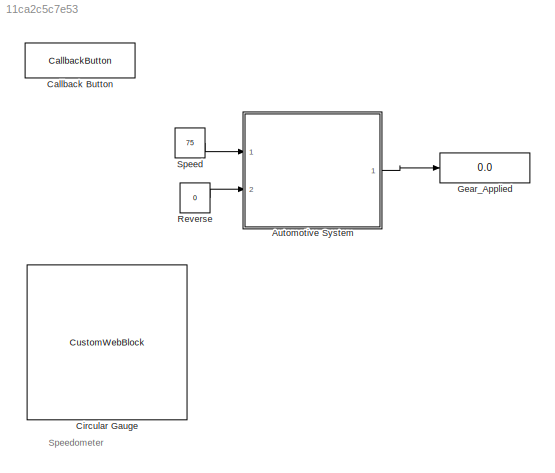
MODEL slx_11ca2c5c7e53
KIND model
CONFIG AbsTol = auto
CONFIG EnableMultiTasking = off
CONFIG FixedStep = auto
CONFIG MaxStep = auto
CONFIG MinStep = auto
CONFIG RelTol = 1e-3
CONFIG SampleTimeConstraint = Unconstrained
CONFIG SolverName = VariableStepAuto
CONFIG StartTime = 0.0
CONFIG StopTime = 10.0
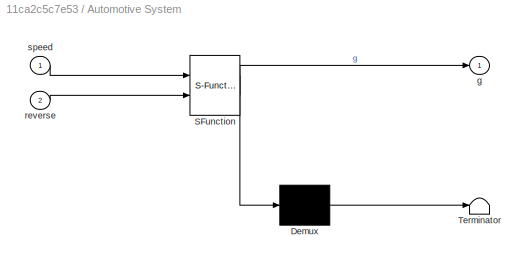
BLOCK [SubSystem] Automotive System
  ErrorFcn = Stateflow.Translate.translate
  PermitHierarchicalResolution = ExplicitOnly
  Ports = [2, 1]
  RequestExecContextInheritance = off
  SFBlockType = Chart
  TreatAsAtomicUnit = on
BLOCK [Demux] Automotive System/ Demux 
  Outputs = 1
  Ports = [1, 1]
BLOCK [S-Function] Automotive System/ SFunction 
  EnableBusSupport = on
  FunctionName = sf_sfun
  PortCounts = [2 2]
  Ports = [2, 2]
  SFcnIsStateOwnerBlock = off
  SFunctionDeploymentMode = off
  Tag = Stateflow S-Function 3
BLOCK [Terminator] Automotive System/ Terminator 
BLOCK [Outport] Automotive System/g
BLOCK [Inport] Automotive System/reverse
  Port = 2
BLOCK [Inport] Automotive System/speed
BLOCK [CallbackButton] Callback Button
  ClickFcn = vdp\nset_param(bdroot,'Solver','ode15s','StopTime','3000')
BLOCK [CustomWebBlock] Circular Gauge
  Configuration = {"components":[{"name":"CircularScaleComponent","settings":{"bounds":{"max":150,"min":0,"tickInterval":"auto"},"direction":"cw","flipLimits":0,"innerRadius":0.75,"internalTickHeightScaleFactor":1,"labelColor":[255,252,199],"labelFont":{"font":"Arial","fontSize":12},"labelTransparency":1,"minorTickHeightScaleFactor":0.2,"needleImage":{"size":[1890,567],"src":"data:image\/svg+xml;base64,PD94bWwgdmVy...<+15935ch>
  LabelPosition = Hide
  ShowInitialText = on
BLOCK [Display] Gear_Applied
  Decimation = 1
  Ports = [1]
BLOCK [Constant] Reverse
  Value = 0
BLOCK [Constant] Speed
  Value = 75
ANNOTATION (root): Speedometer
LINE Automotive System:1 -> Gear_Applied:1
LINE Reverse:1 -> Automotive System:2
LINE Speed:1 -> Automotive System:1
CHART Automotive System states=7 transitions=6
  STATE_LABEL 'GEAR CONFIGURATION IN AUTOMOTIVE SYSTEM'
  STATE_LABEL 'first\nen:\ng=1;'
  STATE_LABEL 'second\nen:\ng=2;'
  STATE_LABEL 'third\nen:\ng=3;'
  STATE_LABEL 'forth\nen:\ng=5;'
  STATE_LABEL 'fifth\nen:\ng=6;'
  STATE_LABEL 'reverse\nen:\ng=-1;'
CHART  states=0 transitions=0
